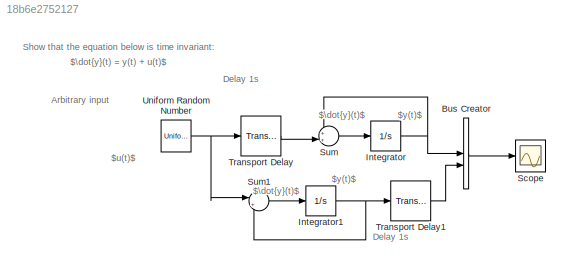
MODEL slx_18b6e2752127
KIND model
CONFIG AbsTol = auto
CONFIG EnableMultiTasking = off
CONFIG FixedStep = 1e-3
CONFIG MaxStep = auto
CONFIG MinStep = auto
CONFIG RelTol = 1e-3
CONFIG SampleTimeConstraint = Unconstrained
CONFIG SolverName = ode4
CONFIG StartTime = 0.0
CONFIG StopTime = 3
BLOCK [BusCreator] Bus Creator
  DisplayOption = bar
  InheritFromInputs = on
  Inputs = 2
BLOCK [Integrator] Integrator
BLOCK [Integrator] Integrator1
BLOCK [Scope] Scope
  Floating = off
  NumInputPorts = 1
  ScopeSpecificationString = Simulink.scopes.TimeScopeBlockCfg('CurrentConfiguration', extmgr.ConfigurationSet(extmgr.Configuration('Core','General UI',true),extmgr.Configuration('Core','Source UI',true),extmgr.Configuration('Sources','WiredSimulink',true),extmgr.Configuration('Visuals','Time Domain',true,'SerializedDisplays',{struct('MinYLimReal','-0.02821','MaxYLimReal','0.01543','YLabelReal','','MinYLimMag','0.00000','MaxY...<+1491ch>
BLOCK [Sum] Sum
  Inputs = ++|
BLOCK [Sum] Sum1
  Inputs = |++
BLOCK [TransportDelay] Transport Delay
BLOCK [TransportDelay] Transport Delay1
BLOCK [UniformRandomNumber] Uniform Random Number
ANNOTATION (root): $\dot{y}(t) = y(t) + u(t)$
ANNOTATION (root): $\dot{y}(t)$
ANNOTATION (root): $u(t)$
ANNOTATION (root): $y(t)$
ANNOTATION (root): Arbitrary input
ANNOTATION (root): Delay 1s
ANNOTATION (root): Show that the equation below is time invariant:
LINE Bus Creator:1 -> Scope:1
NET Integrator1:1 -> Sum1:2, Transport Delay1:1
NET Integrator:1 -> Bus Creator:1, Sum:1
LINE Sum1:1 -> Integrator1:1
LINE Sum:1 -> Integrator:1
LINE Transport Delay1:1 -> Bus Creator:2
LINE Transport Delay:1 -> Sum:2
NET Uniform Random Number:1 -> Sum1:1, Transport Delay:1
note: NET lines group one-source signal fan-out (src -> all destinations, sorted); 1:1 wires keep LINE
